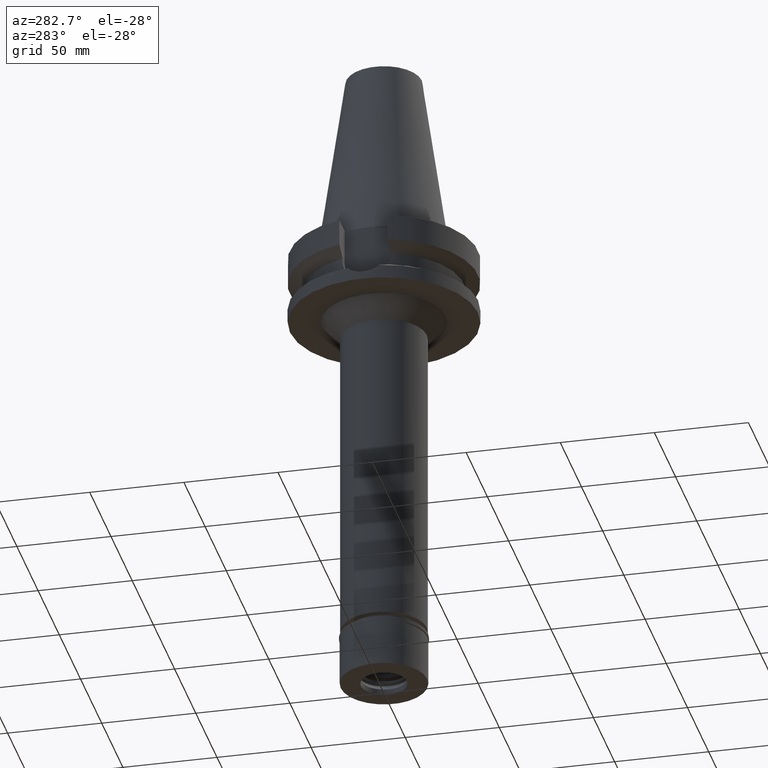
[diagram: clean part render]
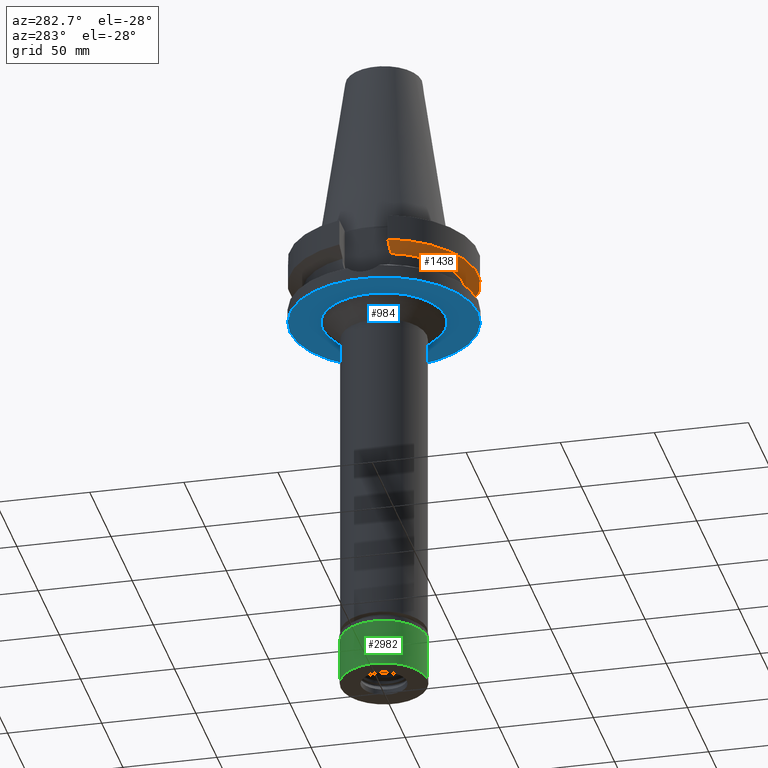
[diagram: same view with three faces highlighted in distinct colors, each labeled with its STEP entity id]
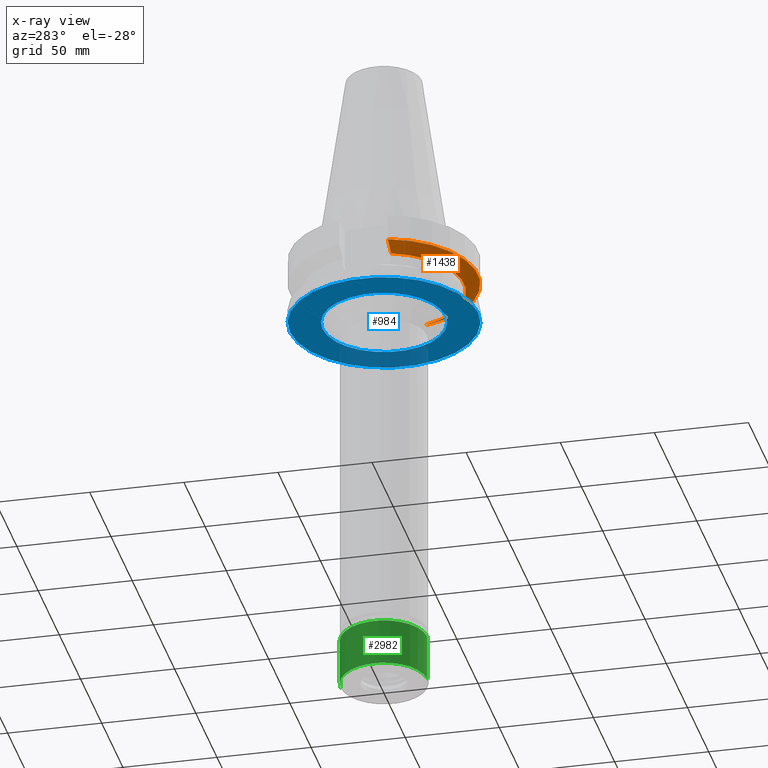
[diagram: x-ray of the same camera — body ghosted, the three highlighted faces saturated]
A machine part, auxiliary view with three faces highlighted in distinct colors.
The next image is the same camera in x-ray (body ghosted, the three faces saturated) — at least one of them is partly hidden behind the body in this view.
Their STEP definitions:

[orange] entity #1438 — the highlighted conical surface has half-angle 60 deg.
#42 = CARTESIAN_POINT ( 'NONE',  ( 45.51179445209620411, -12.85000771148890308, -17.22986957481731451 ) ) ;
#60 = CIRCLE ( 'NONE', #1535, 42.50000000000002132 ) ;
#67 = EDGE_CURVE ( 'NONE', #870, #69, #1795, .T. ) ;
#69 = VERTEX_POINT ( 'NONE', #2966 ) ;
#148 = DIRECTION ( 'NONE',  ( 0.0000000000000000000, 0.0000000000000000000, 1.000000000000000000 ) ) ;
#212 = CARTESIAN_POINT ( 'NONE',  ( -42.90862489405132152, -12.84999313793018416, -18.67324780319469113 ) ) ;
#368 = FACE_OUTER_BOUND ( 'NONE', #1729, .T. ) ;
#434 = CARTESIAN_POINT ( 'NONE',  ( -48.32056912814000071, -12.85000385727999905, -15.66265768250999990 ) ) ;
#647 = EDGE_CURVE ( 'NONE', #1641, #1966, #2906, .T. ) ;
#654 = AXIS2_PLACEMENT_3D ( 'NONE', #1843, #148, #1797 ) ;
#676 = ORIENTED_EDGE ( 'NONE', *, *, #647, .T. ) ;
#870 = VERTEX_POINT ( 'NONE', #2131 ) ;
#912 = DIRECTION ( 'NONE',  ( 0.9531960443486575674, -0.3023529411764863672, 0.0000000000000000000 ) ) ;
#1123 = CIRCLE ( 'NONE', #1429, 50.00000000000000000 ) ;
#1256 = CARTESIAN_POINT ( 'NONE',  ( -40.51083297203000200, -12.84999657244999938, -19.99284555869999735 ) ) ;
#1374 = CONICAL_SURFACE ( 'NONE', #654, 46.25000000000000000, 1.047197551196400456 ) ;
#1429 = AXIS2_PLACEMENT_3D ( 'NONE', #2535, #1736, #2519 ) ;
#1438 = ADVANCED_FACE ( 'NONE', ( #368 ), #1374, .T. ) ;
#1535 = AXIS2_PLACEMENT_3D ( 'NONE', #2183, #1906, #912 ) ;
#1641 = VERTEX_POINT ( 'NONE', #434 ) ;
#1672 = ORIENTED_EDGE ( 'NONE', *, *, #3089, .F. ) ;
#1724 = ORIENTED_EDGE ( 'NONE', *, *, #2776, .F. ) ;
#1729 = EDGE_LOOP ( 'NONE', ( #676, #1672, #2476, #1724 ) ) ;
#1736 = DIRECTION ( 'NONE',  ( 0.0000000000000000000, 0.0000000000000000000, 1.000000000000000000 ) ) ;
#1795 = B_SPLINE_CURVE_WITH_KNOTS ( 'NONE', 3,
 ( #2368, #2416, #42, #1985 ),
 .UNSPECIFIED., .F., .F.,
 ( 4, 4 ),
 ( 0.0000000000000000000, 1.000000000000000000 ),
 .UNSPECIFIED. ) ;
#1797 = DIRECTION ( 'NONE',  ( 0.0000000000000000000, 1.000000000000000000, 0.0000000000000000000 ) ) ;
#1843 = CARTESIAN_POINT ( 'NONE',  ( 0.0000000000000000000, 1.006319759053999930E-14, -17.82775574519000017 ) ) ;
#1852 = CARTESIAN_POINT ( 'NONE',  ( -40.51083297203000200, -12.84999657244999938, -19.99284555869999735 ) ) ;
#1906 = DIRECTION ( 'NONE',  ( 0.0000000000000000000, 0.0000000000000000000, -1.000000000000000000 ) ) ;
#1966 = VERTEX_POINT ( 'NONE', #1852 ) ;
#1985 = CARTESIAN_POINT ( 'NONE',  ( 48.32057015392000210, -12.84999999999999964, -15.66269223573000069 ) ) ;
#2131 = CARTESIAN_POINT ( 'NONE',  ( 40.51083188481999997, -12.84999999999999964, -19.99281925464999787 ) ) ;
#2183 = CARTESIAN_POINT ( 'NONE',  ( 0.0000000000000000000, 1.006319759053999930E-14, -19.99281925464999787 ) ) ;
#2368 = CARTESIAN_POINT ( 'NONE',  ( 40.51083188481999997, -12.84999999999999964, -19.99281925464999787 ) ) ;
#2406 = CARTESIAN_POINT ( 'NONE',  ( -45.51179901536024630, -12.85000770991706176, -17.22986705878139446 ) ) ;
#2416 = CARTESIAN_POINT ( 'NONE',  ( 42.90862839512466564, -12.84999314235032486, -18.67324584512087071 ) ) ;
#2476 = ORIENTED_EDGE ( 'NONE', *, *, #67, .T. ) ;
#2519 = DIRECTION ( 'NONE',  ( 0.0000000000000000000, -1.000000000000000000, 0.0000000000000000000 ) ) ;
#2535 = CARTESIAN_POINT ( 'NONE',  ( 0.0000000000000000000, 1.006319759053999930E-14, -15.66269223573000069 ) ) ;
#2776 = EDGE_CURVE ( 'NONE', #1641, #69, #1123, .T. ) ;
#2880 = CARTESIAN_POINT ( 'NONE',  ( -48.32056912814000071, -12.85000385727999905, -15.66265768250999990 ) ) ;
#2906 = B_SPLINE_CURVE_WITH_KNOTS ( 'NONE', 3,
 ( #2880, #2406, #212, #1256 ),
 .UNSPECIFIED., .F., .F.,
 ( 4, 4 ),
 ( 0.0000000000000000000, 1.000000000000000000 ),
 .UNSPECIFIED. ) ;
#2966 = CARTESIAN_POINT ( 'NONE',  ( 48.32057015392000210, -12.84999999999999964, -15.66269223573000069 ) ) ;
#3089 = EDGE_CURVE ( 'NONE', #870, #1966, #60, .T. ) ;

[blue] entity #984 — the highlighted planar face has unit normal (0, 0, -1).
#59 = DIRECTION ( 'NONE',  ( 0.0000000000000000000, 0.0000000000000000000, -1.000000000000000000 ) ) ;
#86 = DIRECTION ( 'NONE',  ( 0.0000000000000000000, 0.0000000000000000000, -1.000000000000000000 ) ) ;
#131 = CARTESIAN_POINT ( 'NONE',  ( 0.0000000000000000000, 2.680017055253999889E-14, -38.00000000000000000 ) ) ;
#145 = EDGE_CURVE ( 'NONE', #2383, #2656, #504, .T. ) ;
#169 = DIRECTION ( 'NONE',  ( 0.0000000000000000000, 1.000000000000000000, 0.0000000000000000000 ) ) ;
#224 = ORIENTED_EDGE ( 'NONE', *, *, #859, .F. ) ;
#303 = CIRCLE ( 'NONE', #2724, 50.00000000000000000 ) ;
#449 = CIRCLE ( 'NONE', #2244, 32.75000000000000000 ) ;
#504 = CIRCLE ( 'NONE', #2668, 32.75000000000000000 ) ;
#546 = VERTEX_POINT ( 'NONE', #716 ) ;
#574 = DIRECTION ( 'NONE',  ( 0.0000000000000000000, -1.000000000000000000, 0.0000000000000000000 ) ) ;
#617 = CARTESIAN_POINT ( 'NONE',  ( 0.0000000000000000000, 50.00000000000000000, -38.00000000000000000 ) ) ;
#650 = DIRECTION ( 'NONE',  ( 0.0000000000000000000, 1.000000000000000000, 0.0000000000000000000 ) ) ;
#716 = CARTESIAN_POINT ( 'NONE',  ( 0.0000000000000000000, -50.00000000000000000, -38.00000000000000000 ) ) ;
#859 = EDGE_CURVE ( 'NONE', #546, #1534, #303, .T. ) ;
#873 = CARTESIAN_POINT ( 'NONE',  ( 0.0000000000000000000, 0.0000000000000000000, -38.00000000000000000 ) ) ;
#880 = PLANE ( 'NONE',  #2869 ) ;
#984 = ADVANCED_FACE ( 'NONE', ( #2303, #3061 ), #880, .T. ) ;
#1166 = EDGE_LOOP ( 'NONE', ( #2962, #2633 ) ) ;
#1349 = CARTESIAN_POINT ( 'NONE',  ( 0.0000000000000000000, 0.0000000000000000000, -38.00000000000000000 ) ) ;
#1449 = CARTESIAN_POINT ( 'NONE',  ( 0.0000000000000000000, 32.75000000000000000, -38.00000000000000000 ) ) ;
#1534 = VERTEX_POINT ( 'NONE', #617 ) ;
#1625 = DIRECTION ( 'NONE',  ( 0.0000000000000000000, 0.0000000000000000000, 1.000000000000000000 ) ) ;
#1941 = EDGE_CURVE ( 'NONE', #2656, #2383, #449, .T. ) ;
#1948 = AXIS2_PLACEMENT_3D ( 'NONE', #3075, #2788, #169 ) ;
#1996 = EDGE_LOOP ( 'NONE', ( #3111, #224 ) ) ;
#2053 = DIRECTION ( 'NONE',  ( 0.0000000000000000000, -1.000000000000000000, 0.0000000000000000000 ) ) ;
#2244 = AXIS2_PLACEMENT_3D ( 'NONE', #873, #86, #650 ) ;
#2303 = FACE_OUTER_BOUND ( 'NONE', #1996, .T. ) ;
#2383 = VERTEX_POINT ( 'NONE', #2603 ) ;
#2603 = CARTESIAN_POINT ( 'NONE',  ( 0.0000000000000000000, -32.75000000000000000, -38.00000000000000000 ) ) ;
#2609 = DIRECTION ( 'NONE',  ( 0.0000000000000000000, -1.000000000000000000, 0.0000000000000000000 ) ) ;
#2633 = ORIENTED_EDGE ( 'NONE', *, *, #145, .F. ) ;
#2656 = VERTEX_POINT ( 'NONE', #1449 ) ;
#2668 = AXIS2_PLACEMENT_3D ( 'NONE', #2785, #59, #2053 ) ;
#2672 = CIRCLE ( 'NONE', #1948, 50.00000000000000000 ) ;
#2724 = AXIS2_PLACEMENT_3D ( 'NONE', #131, #1625, #2609 ) ;
#2785 = CARTESIAN_POINT ( 'NONE',  ( 0.0000000000000000000, 0.0000000000000000000, -38.00000000000000000 ) ) ;
#2788 = DIRECTION ( 'NONE',  ( 0.0000000000000000000, 0.0000000000000000000, 1.000000000000000000 ) ) ;
#2805 = DIRECTION ( 'NONE',  ( 0.0000000000000000000, 0.0000000000000000000, -1.000000000000000000 ) ) ;
#2869 = AXIS2_PLACEMENT_3D ( 'NONE', #1349, #2805, #574 ) ;
#2962 = ORIENTED_EDGE ( 'NONE', *, *, #1941, .F. ) ;
#3036 = EDGE_CURVE ( 'NONE', #1534, #546, #2672, .T. ) ;
#3061 = FACE_BOUND ( 'NONE', #1166, .T. ) ;
#3075 = CARTESIAN_POINT ( 'NONE',  ( 0.0000000000000000000, 2.680017055253999889E-14, -38.00000000000000000 ) ) ;
#3111 = ORIENTED_EDGE ( 'NONE', *, *, #3036, .F. ) ;

[green] entity #2982 — the highlighted cylindrical surface (partial cylindrical patch) has radius 23 mm, axis along (0, 0, -1).
#2 = LINE ( 'NONE', #985, #2574 ) ;
#7 = CIRCLE ( 'NONE', #2520, 23.00000000000000000 ) ;
#113 = VECTOR ( 'NONE', #1220, 1000.000000000000000 ) ;
#235 = DIRECTION ( 'NONE',  ( 0.0000000000000000000, -1.000000000000000000, 0.0000000000000000000 ) ) ;
#273 = EDGE_LOOP ( 'NONE', ( #2836, #1240, #2224, #2012 ) ) ;
#274 = CARTESIAN_POINT ( 'NONE',  ( 0.0000000000000000000, -23.00000000000000000, -2.299999999999999822 ) ) ;
#315 = CARTESIAN_POINT ( 'NONE',  ( 0.0000000000000000000, 0.0000000000000000000, -27.19999999999999929 ) ) ;
#340 = CYLINDRICAL_SURFACE ( 'NONE', #1993, 23.00000000000000000 ) ;
#695 = VERTEX_POINT ( 'NONE', #1514 ) ;
#699 = EDGE_CURVE ( 'NONE', #2763, #1953, #1478, .T. ) ;
#904 = CARTESIAN_POINT ( 'NONE',  ( 0.0000000000000000000, -23.00000000000000000, -27.19999999999999929 ) ) ;
#985 = CARTESIAN_POINT ( 'NONE',  ( 0.0000000000000000000, 23.00000000000000000, -2.299999999999999822 ) ) ;
#1041 = CARTESIAN_POINT ( 'NONE',  ( 0.0000000000000000000, 23.00000000000000000, -27.19999999999999929 ) ) ;
#1209 = DIRECTION ( 'NONE',  ( 0.0000000000000000000, 0.0000000000000000000, -1.000000000000000000 ) ) ;
#1220 = DIRECTION ( 'NONE',  ( 0.0000000000000000000, 0.0000000000000000000, -1.000000000000000000 ) ) ;
#1222 = CARTESIAN_POINT ( 'NONE',  ( 0.0000000000000000000, 0.0000000000000000000, -2.299999999999999822 ) ) ;
#1240 = ORIENTED_EDGE ( 'NONE', *, *, #1268, .F. ) ;
#1268 = EDGE_CURVE ( 'NONE', #695, #1953, #2232, .T. ) ;
#1478 = CIRCLE ( 'NONE', #3065, 23.00000000000000000 ) ;
#1514 = CARTESIAN_POINT ( 'NONE',  ( 0.0000000000000000000, -23.00000000000000000, -2.299999999999999822 ) ) ;
#1813 = FACE_OUTER_BOUND ( 'NONE', #273, .T. ) ;
#1953 = VERTEX_POINT ( 'NONE', #904 ) ;
#1993 = AXIS2_PLACEMENT_3D ( 'NONE', #2318, #2551, #2364 ) ;
#2012 = ORIENTED_EDGE ( 'NONE', *, *, #2015, .T. ) ;
#2014 = DIRECTION ( 'NONE',  ( 0.0000000000000000000, 0.0000000000000000000, 1.000000000000000000 ) ) ;
#2015 = EDGE_CURVE ( 'NONE', #3116, #2763, #2, .T. ) ;
#2224 = ORIENTED_EDGE ( 'NONE', *, *, #2651, .T. ) ;
#2232 = LINE ( 'NONE', #274, #113 ) ;
#2318 = CARTESIAN_POINT ( 'NONE',  ( 0.0000000000000000000, 0.0000000000000000000, 0.0000000000000000000 ) ) ;
#2364 = DIRECTION ( 'NONE',  ( 0.0000000000000000000, -1.000000000000000000, 0.0000000000000000000 ) ) ;
#2520 = AXIS2_PLACEMENT_3D ( 'NONE', #1222, #1209, #235 ) ;
#2551 = DIRECTION ( 'NONE',  ( 0.0000000000000000000, 0.0000000000000000000, -1.000000000000000000 ) ) ;
#2558 = DIRECTION ( 'NONE',  ( 0.0000000000000000000, 1.000000000000000000, 0.0000000000000000000 ) ) ;
#2574 = VECTOR ( 'NONE', #2877, 1000.000000000000000 ) ;
#2641 = CARTESIAN_POINT ( 'NONE',  ( 0.0000000000000000000, 23.00000000000000000, -2.299999999999999822 ) ) ;
#2651 = EDGE_CURVE ( 'NONE', #695, #3116, #7, .T. ) ;
#2763 = VERTEX_POINT ( 'NONE', #1041 ) ;
#2836 = ORIENTED_EDGE ( 'NONE', *, *, #699, .T. ) ;
#2877 = DIRECTION ( 'NONE',  ( 0.0000000000000000000, 0.0000000000000000000, -1.000000000000000000 ) ) ;
#2982 = ADVANCED_FACE ( 'NONE', ( #1813 ), #340, .T. ) ;
#3065 = AXIS2_PLACEMENT_3D ( 'NONE', #315, #2014, #2558 ) ;
#3116 = VERTEX_POINT ( 'NONE', #2641 ) ;